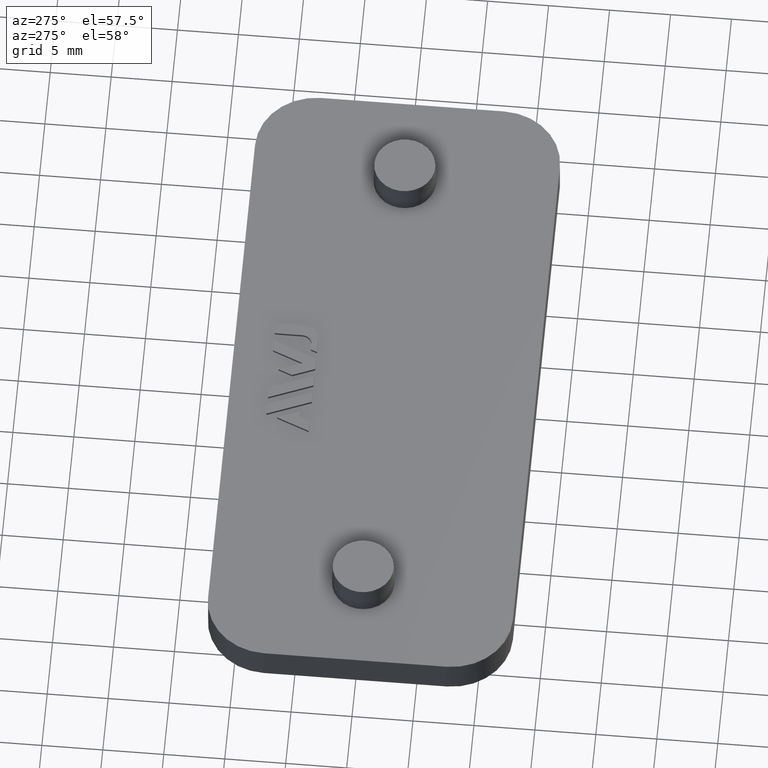
[diagram: clean part render]
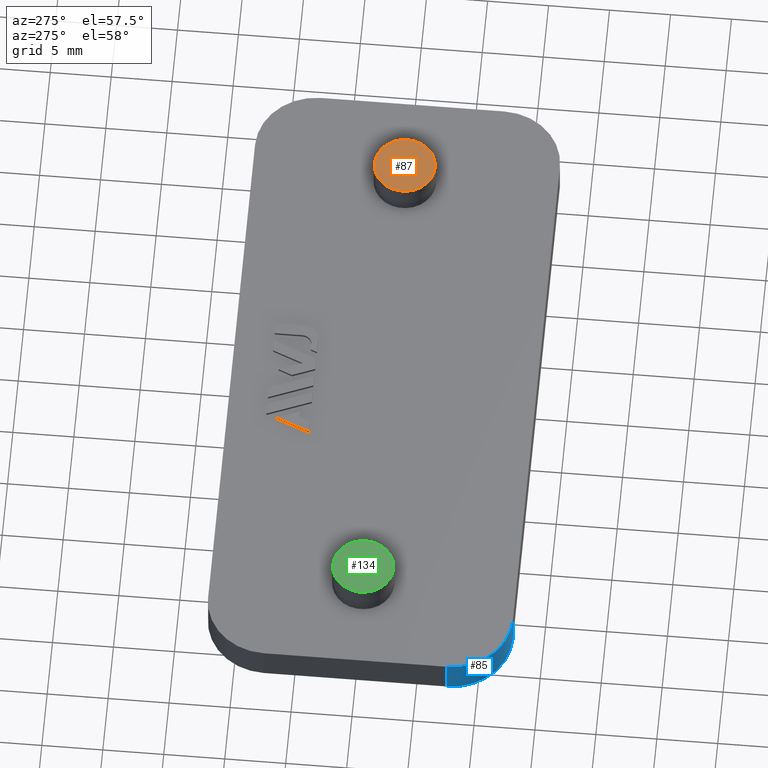
[diagram: same view with three faces highlighted in distinct colors, each labeled with its STEP entity id]
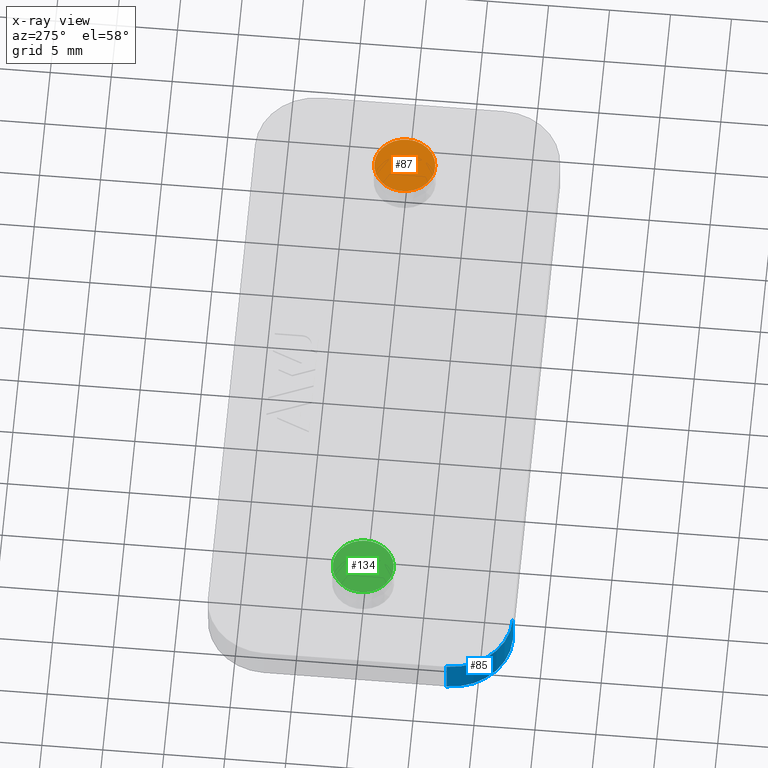
[diagram: x-ray of the same camera — body ghosted, the three highlighted faces saturated]
A machine part, auxiliary view with three faces highlighted in distinct colors.
The next image is the same camera in x-ray (body ghosted, the three faces saturated) — at least one of them is partly hidden behind the body in this view.
Their STEP definitions:

[orange] entity #87 — the highlighted planar face has unit normal (0, -0, -1).
#87 = ADVANCED_FACE( '', ( #170 ), #171, .F. );
#170 = FACE_OUTER_BOUND( '', #303, .T. );
#171 = PLANE( '', #304 );
#303 = EDGE_LOOP( '', ( #537 ) );
#304 = AXIS2_PLACEMENT_3D( '', #538, #539, #540 );
#537 = ORIENTED_EDGE( '', *, *, #953, .F. );
#538 = CARTESIAN_POINT( '', ( 19.5000000000000, 3.58937326475767E-015, 5.49999999999999 ) );
#539 = DIRECTION( '', ( 0.000000000000000, -6.12303176911189E-017, -1.00000000000000 ) );
#540 = DIRECTION( '', ( 1.00000000000000, 6.12303176911188E-017, -3.74915180455534E-033 ) );
#953 = EDGE_CURVE( '', #1162, #1162, #1163, .T. );
#1162 = VERTEX_POINT( '', #1469 );
#1163 = CIRCLE( '', #1470, 2.50000000000000 );
#1469 = CARTESIAN_POINT( '', ( 22.0000000000000, 3.74244905898546E-015, 5.49999999999999 ) );
#1470 = AXIS2_PLACEMENT_3D( '', #1753, #1754, #1755 );
#1753 = CARTESIAN_POINT( '', ( 19.5000000000000, 3.58937326475767E-015, 5.49999999999999 ) );
#1754 = DIRECTION( '', ( 0.000000000000000, -6.12303176911189E-017, -1.00000000000000 ) );
#1755 = DIRECTION( '', ( 1.00000000000000, 6.12303176911188E-017, -3.74915180455534E-033 ) );

[blue] entity #85 — the highlighted cylindrical surface (partial cylindrical patch) has radius 5 mm, axis along (-0, 0, 1).
#85 = ADVANCED_FACE( '', ( #166 ), #167, .T. );
#166 = FACE_OUTER_BOUND( '', #299, .T. );
#167 = CYLINDRICAL_SURFACE( '', #300, 4.99999999999998 );
#299 = EDGE_LOOP( '', ( #523, #524, #525, #526 ) );
#300 = AXIS2_PLACEMENT_3D( '', #527, #528, #529 );
#523 = ORIENTED_EDGE( '', *, *, #949, .F. );
#524 = ORIENTED_EDGE( '', *, *, #952, .F. );
#525 = ORIENTED_EDGE( '', *, *, #897, .T. );
#526 = ORIENTED_EDGE( '', *, *, #929, .T. );
#527 = CARTESIAN_POINT( '', ( -22.0000000000000, -7.50000000000000, 83.8283656310797 ) );
#528 = DIRECTION( '', ( -1.60751816480226E-016, 1.81794180051289E-016, 1.00000000000000 ) );
#529 = DIRECTION( '', ( -1.00000000000000, -5.90573087550520E-032, -1.60751816480226E-016 ) );
#897 = EDGE_CURVE( '', #1061, #1059, #1062, .T. );
#929 = EDGE_CURVE( '', #1059, #1119, #1122, .T. );
#949 = EDGE_CURVE( '', #1156, #1119, #1158, .T. );
#952 = EDGE_CURVE( '', #1061, #1156, #1161, .T. );
#1059 = VERTEX_POINT( '', #1319 );
#1061 = VERTEX_POINT( '', #1322 );
#1062 = CIRCLE( '', #1323, 4.99999999999998 );
#1119 = VERTEX_POINT( '', #1405 );
#1122 = LINE( '', #1409, #1410 );
#1156 = VERTEX_POINT( '', #1459 );
#1158 = CIRCLE( '', #1462, 4.99999999999998 );
#1161 = LINE( '', #1467, #1468 );
#1319 = CARTESIAN_POINT( '', ( -27.0000000000000, -7.50000000000002, 2.99999999999999 ) );
#1322 = CARTESIAN_POINT( '', ( -22.0000000000000, -12.5000000000000, 2.99999999999999 ) );
#1323 = AXIS2_PLACEMENT_3D( '', #1677, #1678, #1679 );
#1405 = CARTESIAN_POINT( '', ( -27.0000000000000, -7.50000000000002, -1.34185604251311E-014 ) );
#1409 = CARTESIAN_POINT( '', ( -27.0000000000000, -7.50000000000000, 83.8283656310797 ) );
#1410 = VECTOR( '', #1721, 1000.00000000000 );
#1459 = CARTESIAN_POINT( '', ( -22.0000000000000, -12.5000000000000, -1.31124088366755E-014 ) );
#1462 = AXIS2_PLACEMENT_3D( '', #1747, #1748, #1749 );
#1467 = CARTESIAN_POINT( '', ( -22.0000000000000, -12.5000000000000, 83.8283656310797 ) );
#1468 = VECTOR( '', #1752, 1000.00000000000 );
#1677 = CARTESIAN_POINT( '', ( -22.0000000000000, -7.50000000000002, 2.99999999999999 ) );
#1678 = DIRECTION( '', ( 0.000000000000000, -6.12303176911189E-017, -1.00000000000000 ) );
#1679 = DIRECTION( '', ( 0.000000000000000, 1.00000000000000, -6.12303176911189E-017 ) );
#1721 = DIRECTION( '', ( 1.60751816480226E-016, -1.81794180051289E-016, -1.00000000000000 ) );
#1747 = CARTESIAN_POINT( '', ( -22.0000000000000, -7.50000000000002, -1.34185604251311E-014 ) );
#1748 = DIRECTION( '', ( 0.000000000000000, -6.12303176911189E-017, -1.00000000000000 ) );
#1749 = DIRECTION( '', ( 0.000000000000000, 1.00000000000000, -6.12303176911189E-017 ) );
#1752 = DIRECTION( '', ( 1.60751816480226E-016, -1.81794180051289E-016, -1.00000000000000 ) );

[green] entity #134 — the highlighted planar face has unit normal (0, -0, -1).
#134 = ADVANCED_FACE( '', ( #265 ), #266, .F. );
#265 = FACE_OUTER_BOUND( '', #398, .T. );
#266 = PLANE( '', #399 );
#398 = EDGE_LOOP( '', ( #873 ) );
#399 = AXIS2_PLACEMENT_3D( '', #874, #875, #876 );
#873 = ORIENTED_EDGE( '', *, *, #1029, .F. );
#874 = CARTESIAN_POINT( '', ( -19.5000000000000, -1.61479716317276E-015, 5.49999999999999 ) );
#875 = DIRECTION( '', ( 0.000000000000000, -6.12303176911189E-017, -1.00000000000000 ) );
#876 = DIRECTION( '', ( 1.00000000000000, 6.12303176911188E-017, -3.74915180455534E-033 ) );
#1029 = EDGE_CURVE( '', #1276, #1276, #1277, .T. );
#1276 = VERTEX_POINT( '', #1656 );
#1277 = CIRCLE( '', #1657, 2.50000000000000 );
#1656 = CARTESIAN_POINT( '', ( -17.0000000000000, -1.46172136894496E-015, 5.49999999999999 ) );
#1657 = AXIS2_PLACEMENT_3D( '', #1835, #1836, #1837 );
#1835 = CARTESIAN_POINT( '', ( -19.5000000000000, -1.61479716317276E-015, 5.49999999999999 ) );
#1836 = DIRECTION( '', ( -4.37905770101506E-049, -6.12303176911189E-017, -1.00000000000000 ) );
#1837 = DIRECTION( '', ( 1.00000000000000, 6.12303176911188E-017, -3.74915180455534E-033 ) );